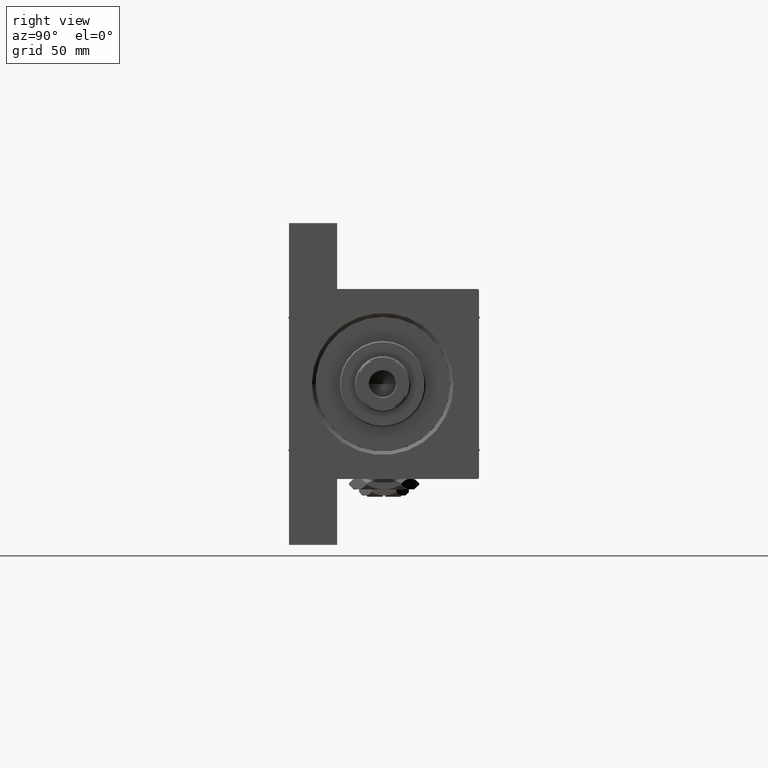
[diagram: clean part render]
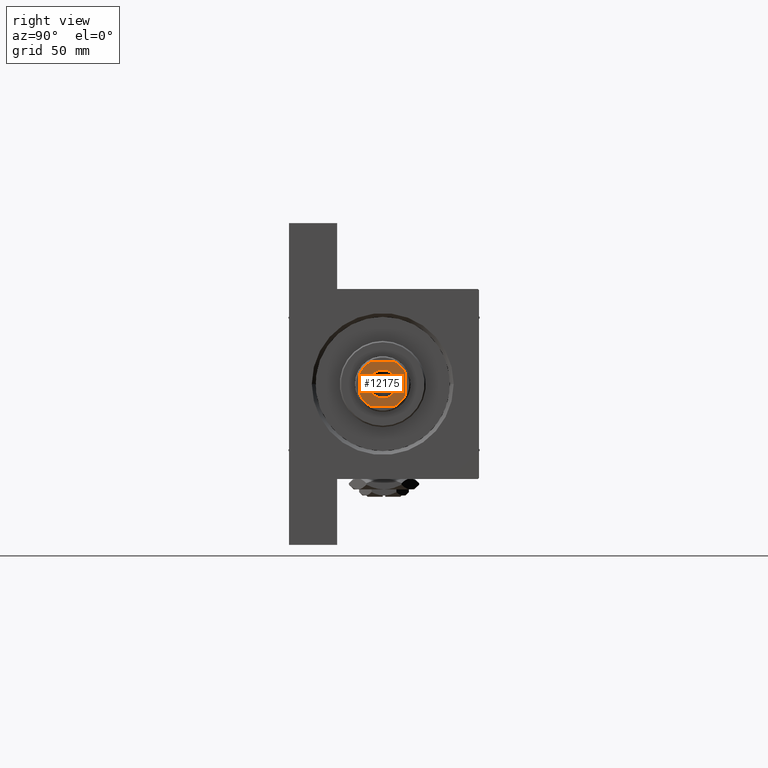
[diagram: same view with one face highlighted and labeled with its STEP entity id]
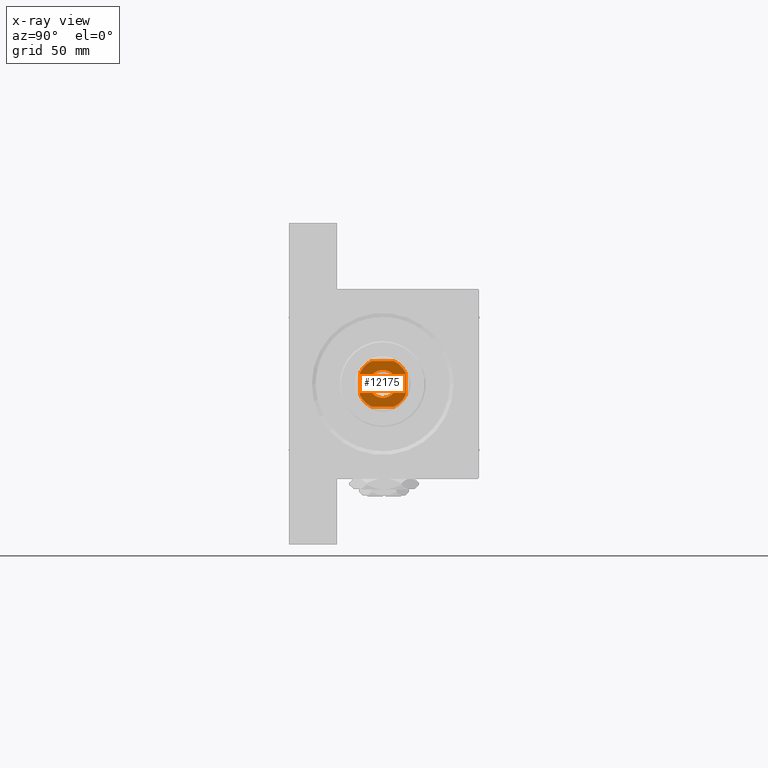
[diagram: x-ray of the same camera — body ghosted, the highlighted face saturated]
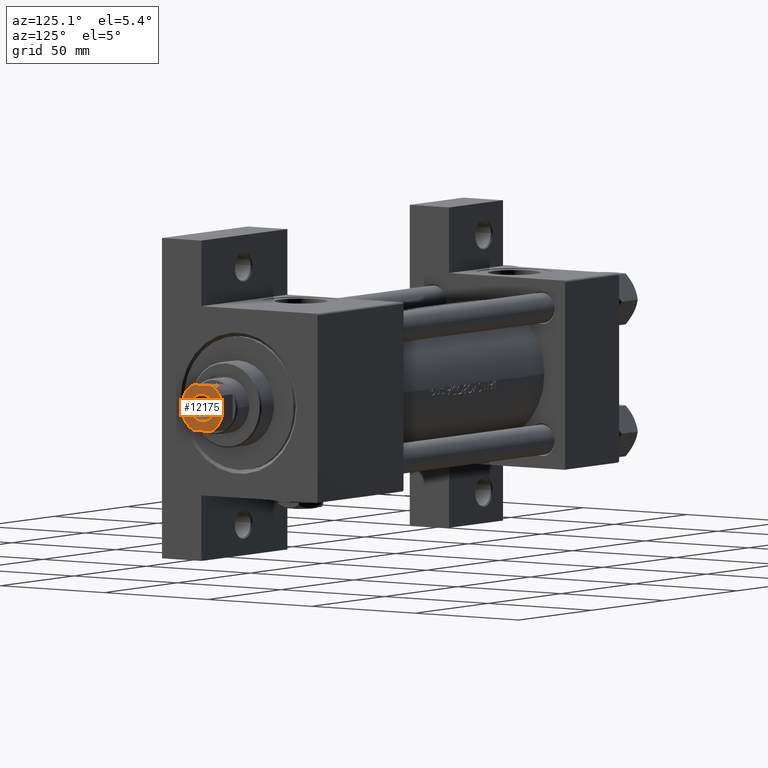
[diagram: same view with one face highlighted and labeled with its STEP entity id]
A machine part, right view. The second image highlights one B-rep face of the part: STEP entity #12175.
The next image is the same camera in x-ray: the body ghosted, the highlighted face saturated — about 0% of this face is hidden behind the body in this view.
A second angle (auxiliary view) of the same face is appended — the face is thin or edge-on in the first view.
In plain terms, the highlighted planar face has unit normal (1, 0, 0).
Its self-contained STEP definition (entity closure, byte-faithful):
#28 = EDGE_CURVE ( 'NONE', #21081, #39831, #33880, .T. ) ;
#965 = LINE ( 'NONE', #39781, #31123 ) ;
#1098 = PLANE ( 'NONE',  #6262 ) ;
#1833 = EDGE_CURVE ( 'NONE', #22917, #7392, #7940, .T. ) ;
#1873 = VECTOR ( 'NONE', #24895, 1000.000000000000000 ) ;
#1954 = EDGE_CURVE ( 'NONE', #39831, #21081, #17972, .T. ) ;
#2338 = DIRECTION ( 'NONE',  ( 1.000000000000000000, 0.000000000000000000, 0.000000000000000000 ) ) ;
#3497 = CARTESIAN_POINT ( 'NONE',  ( 4.358898943540723714, -9.000000000000001776, 195.0000000000000000 ) ) ;
#3660 = AXIS2_PLACEMENT_3D ( 'NONE', #3703, #41054, #37556 ) ;
#3703 = CARTESIAN_POINT ( 'NONE',  ( 0.000000000000000000, 0.000000000000000000, 195.0000000000000000 ) ) ;
#4001 = DIRECTION ( 'NONE',  ( -0.000000000000000000, 0.000000000000000000, 1.000000000000000000 ) ) ;
#4823 = CARTESIAN_POINT ( 'NONE',  ( -9.000000000000003553, 8.999999999999998224, 195.0000000000000000 ) ) ;
#4825 = FACE_BOUND ( 'NONE', #41228, .T. ) ;
#6262 = AXIS2_PLACEMENT_3D ( 'NONE', #27750, #8799, #2338 ) ;
#6450 = LINE ( 'NONE', #10410, #1873 ) ;
#6747 = CARTESIAN_POINT ( 'NONE',  ( -4.358898943540729931, 8.999999999999998224, 195.0000000000000000 ) ) ;
#7392 = VERTEX_POINT ( 'NONE', #3497 ) ;
#7721 = DIRECTION ( 'NONE',  ( 1.000000000000000000, 0.000000000000000000, 0.000000000000000000 ) ) ;
#7738 = ORIENTED_EDGE ( 'NONE', *, *, #17397, .T. ) ;
#7852 = CARTESIAN_POINT ( 'NONE',  ( 0.000000000000000000, 0.000000000000000000, 195.0000000000000000 ) ) ;
#7940 = LINE ( 'NONE', #41815, #15587 ) ;
#8453 = AXIS2_PLACEMENT_3D ( 'NONE', #22639, #44814, #37821 ) ;
#8799 = DIRECTION ( 'NONE',  ( -0.000000000000000000, 0.000000000000000000, 1.000000000000000000 ) ) ;
#10410 = CARTESIAN_POINT ( 'NONE',  ( -9.000000000000003553, 8.999999999999998224, 195.0000000000000000 ) ) ;
#11059 = CIRCLE ( 'NONE', #39689, 10.00000000000002309 ) ;
#11409 = AXIS2_PLACEMENT_3D ( 'NONE', #41593, #4001, #15433 ) ;
#11569 = ORIENTED_EDGE ( 'NONE', *, *, #28, .T. ) ;
#12175 = ADVANCED_FACE ( 'NONE', ( #4825, #19995 ), #1098, .T. ) ;
#12647 = EDGE_CURVE ( 'NONE', #20500, #43104, #11059, .T. ) ;
#12731 = ORIENTED_EDGE ( 'NONE', *, *, #1833, .T. ) ;
#14326 = ORIENTED_EDGE ( 'NONE', *, *, #39284, .T. ) ;
#15389 = DIRECTION ( 'NONE',  ( -0.000000000000000000, 0.000000000000000000, 1.000000000000000000 ) ) ;
#15433 = DIRECTION ( 'NONE',  ( 1.000000000000000000, 0.000000000000000000, 0.000000000000000000 ) ) ;
#15587 = VECTOR ( 'NONE', #37571, 1000.000000000000000 ) ;
#16115 = VERTEX_POINT ( 'NONE', #44389 ) ;
#16153 = DIRECTION ( 'NONE',  ( -0.000000000000000000, 0.000000000000000000, 1.000000000000000000 ) ) ;
#16819 = ORIENTED_EDGE ( 'NONE', *, *, #24725, .T. ) ;
#17397 = EDGE_CURVE ( 'NONE', #32370, #20500, #23755, .T. ) ;
#17972 = CIRCLE ( 'NONE', #8453, 5.550000000000054889 ) ;
#18969 = ORIENTED_EDGE ( 'NONE', *, *, #27046, .T. ) ;
#19012 = ORIENTED_EDGE ( 'NONE', *, *, #21959, .T. ) ;
#19173 = ORIENTED_EDGE ( 'NONE', *, *, #12647, .T. ) ;
#19364 = DIRECTION ( 'NONE',  ( 1.000000000000000000, 0.000000000000000000, 0.000000000000000000 ) ) ;
#19641 = CARTESIAN_POINT ( 'NONE',  ( 0.000000000000000000, 0.000000000000000000, 195.0000000000000000 ) ) ;
#19995 = FACE_OUTER_BOUND ( 'NONE', #45687, .T. ) ;
#20500 = VERTEX_POINT ( 'NONE', #6747 ) ;
#20785 = CARTESIAN_POINT ( 'NONE',  ( -9.000000000000003553, 4.358898943540721937, 195.0000000000000000 ) ) ;
#21081 = VERTEX_POINT ( 'NONE', #27522 ) ;
#21959 = EDGE_CURVE ( 'NONE', #16115, #26242, #965, .T. ) ;
#22443 = AXIS2_PLACEMENT_3D ( 'NONE', #34090, #15389, #19364 ) ;
#22639 = CARTESIAN_POINT ( 'NONE',  ( 0.000000000000000000, 0.000000000000000000, 195.0000000000000000 ) ) ;
#22917 = VERTEX_POINT ( 'NONE', #39854 ) ;
#23755 = LINE ( 'NONE', #4823, #40508 ) ;
#24725 = EDGE_CURVE ( 'NONE', #7392, #16115, #38327, .T. ) ;
#24895 = DIRECTION ( 'NONE',  ( 9.637352644315595243E-17, -1.000000000000000000, 0.000000000000000000 ) ) ;
#24919 = AXIS2_PLACEMENT_3D ( 'NONE', #7852, #45952, #34971 ) ;
#24950 = CIRCLE ( 'NONE', #11409, 9.999999999999925393 ) ;
#26242 = VERTEX_POINT ( 'NONE', #43903 ) ;
#27046 = EDGE_CURVE ( 'NONE', #29528, #22917, #24950, .T. ) ;
#27382 = EDGE_CURVE ( 'NONE', #43104, #29528, #6450, .T. ) ;
#27522 = CARTESIAN_POINT ( 'NONE',  ( -5.550000000000054889, 6.796789735267876848E-16, 195.0000000000000000 ) ) ;
#27750 = CARTESIAN_POINT ( 'NONE',  ( 0.000000000000000000, 0.000000000000000000, 195.0000000000000000 ) ) ;
#29528 = VERTEX_POINT ( 'NONE', #44928 ) ;
#30828 = CARTESIAN_POINT ( 'NONE',  ( 4.358898943540618909, 8.999999999999998224, 195.0000000000000000 ) ) ;
#31123 = VECTOR ( 'NONE', #46784, 1000.000000000000000 ) ;
#31472 = DIRECTION ( 'NONE',  ( -1.000000000000000000, -0.000000000000000000, -0.000000000000000000 ) ) ;
#32370 = VERTEX_POINT ( 'NONE', #30828 ) ;
#33664 = ORIENTED_EDGE ( 'NONE', *, *, #27382, .T. ) ;
#33880 = CIRCLE ( 'NONE', #3660, 5.550000000000054889 ) ;
#34090 = CARTESIAN_POINT ( 'NONE',  ( 0.000000000000000000, 0.000000000000000000, 195.0000000000000000 ) ) ;
#34458 = CIRCLE ( 'NONE', #24919, 9.999999999999973355 ) ;
#34971 = DIRECTION ( 'NONE',  ( 1.000000000000000000, 0.000000000000000000, 0.000000000000000000 ) ) ;
#37556 = DIRECTION ( 'NONE',  ( 1.000000000000000000, 0.000000000000000000, 0.000000000000000000 ) ) ;
#37571 = DIRECTION ( 'NONE',  ( 1.000000000000000000, 0.000000000000000000, 0.000000000000000000 ) ) ;
#37821 = DIRECTION ( 'NONE',  ( 1.000000000000000000, 0.000000000000000000, 0.000000000000000000 ) ) ;
#38327 = CIRCLE ( 'NONE', #22443, 10.00000000000002309 ) ;
#39284 = EDGE_CURVE ( 'NONE', #26242, #32370, #34458, .T. ) ;
#39689 = AXIS2_PLACEMENT_3D ( 'NONE', #19641, #16153, #7721 ) ;
#39781 = CARTESIAN_POINT ( 'NONE',  ( 8.999999999999996447, 8.999999999999998224, 195.0000000000000000 ) ) ;
#39831 = VERTEX_POINT ( 'NONE', #46084 ) ;
#39854 = CARTESIAN_POINT ( 'NONE',  ( -4.358898943540500781, -9.000000000000001776, 195.0000000000000000 ) ) ;
#40508 = VECTOR ( 'NONE', #31472, 1000.000000000000000 ) ;
#41054 = DIRECTION ( 'NONE',  ( 0.000000000000000000, -0.000000000000000000, -1.000000000000000000 ) ) ;
#41228 = EDGE_LOOP ( 'NONE', ( #43701, #11569 ) ) ;
#41593 = CARTESIAN_POINT ( 'NONE',  ( 0.000000000000000000, 0.000000000000000000, 195.0000000000000000 ) ) ;
#41815 = CARTESIAN_POINT ( 'NONE',  ( -9.000000000000001776, -9.000000000000001776, 195.0000000000000000 ) ) ;
#43104 = VERTEX_POINT ( 'NONE', #20785 ) ;
#43701 = ORIENTED_EDGE ( 'NONE', *, *, #1954, .T. ) ;
#43903 = CARTESIAN_POINT ( 'NONE',  ( 8.999999999999998224, 4.358898943540620685, 195.0000000000000000 ) ) ;
#44389 = CARTESIAN_POINT ( 'NONE',  ( 8.999999999999998224, -4.358898943540728155, 195.0000000000000000 ) ) ;
#44814 = DIRECTION ( 'NONE',  ( 0.000000000000000000, -0.000000000000000000, -1.000000000000000000 ) ) ;
#44928 = CARTESIAN_POINT ( 'NONE',  ( -9.000000000000003553, -4.358898943540499005, 195.0000000000000000 ) ) ;
#45687 = EDGE_LOOP ( 'NONE', ( #19012, #14326, #7738, #19173, #33664, #18969, #12731, #16819 ) ) ;
#45952 = DIRECTION ( 'NONE',  ( -0.000000000000000000, 0.000000000000000000, 1.000000000000000000 ) ) ;
#46084 = CARTESIAN_POINT ( 'NONE',  ( 5.550000000000054889, 0.000000000000000000, 195.0000000000000000 ) ) ;
#46784 = DIRECTION ( 'NONE',  ( -1.927470528863119049E-16, 1.000000000000000000, -0.000000000000000000 ) ) ;